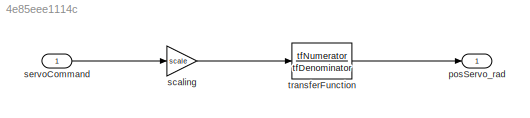
MODEL slx_4e85eee1114c
KIND model
WORKSPACE source: mxarray member
WORKSPACE scale = 1
WORKSPACE tfDenominator = [0.1 1]
WORKSPACE tfNumerator = 1
BLOCK [Outport] posServo_rad
BLOCK [Gain] scaling
  Gain = scale
BLOCK [Inport] servoCommand
BLOCK [TransferFcn] transferFunction
  Denominator = tfDenominator
  Numerator = tfNumerator
LINE scaling:1 -> transferFunction:1
LINE servoCommand:1 -> scaling:1
LINE transferFunction:1 -> posServo_rad:1
